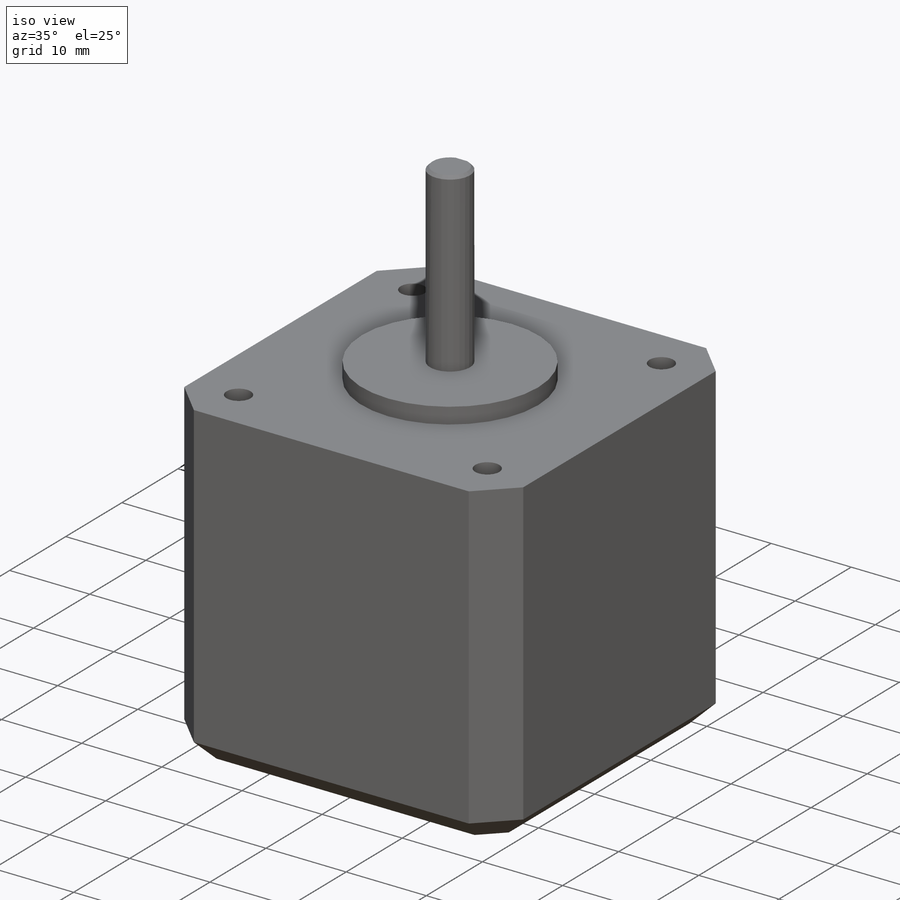
[diagram: iso view]
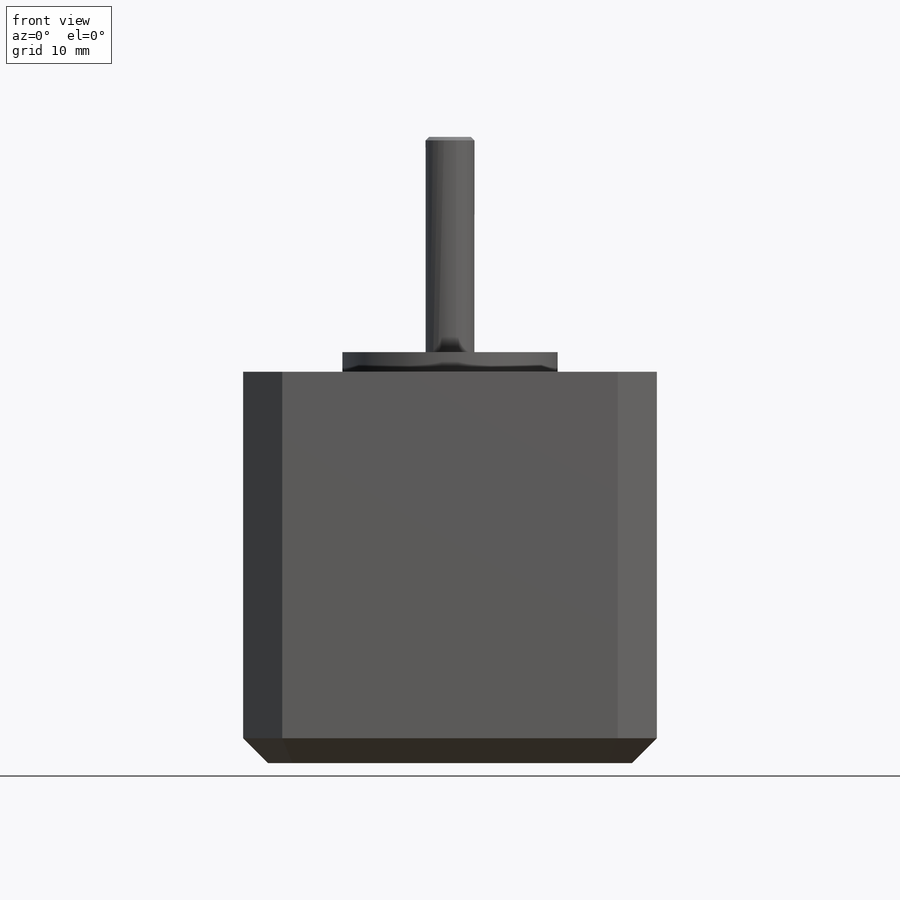
[diagram: front view]
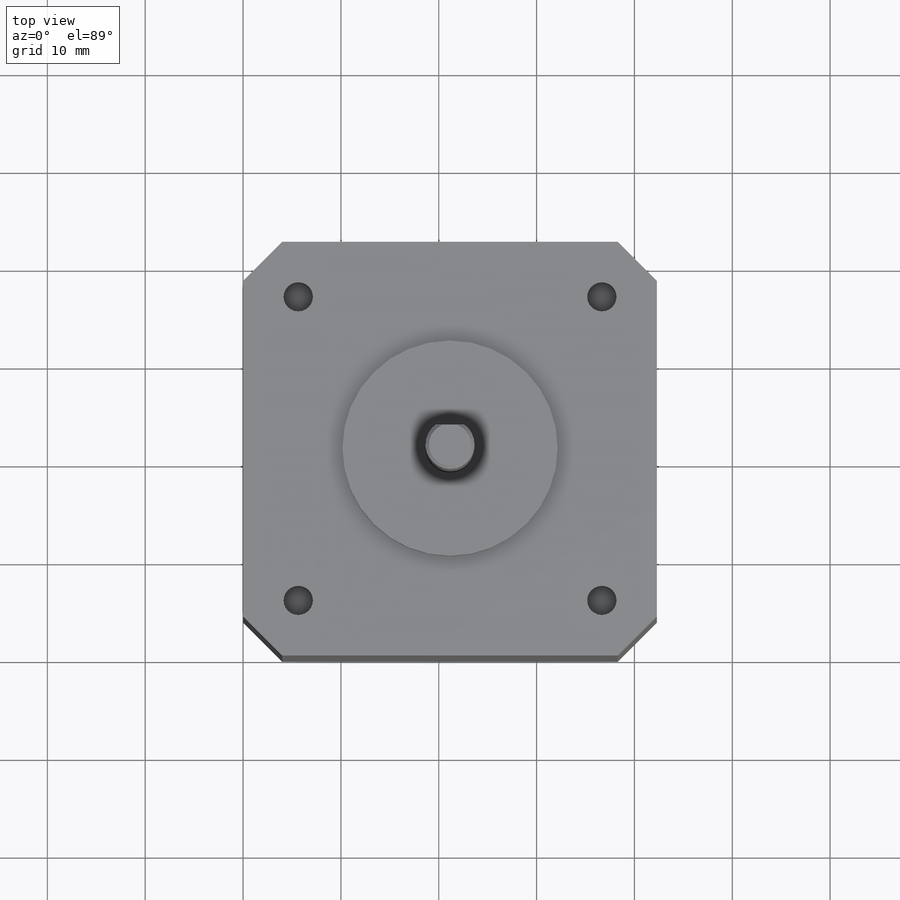
[diagram: top view]
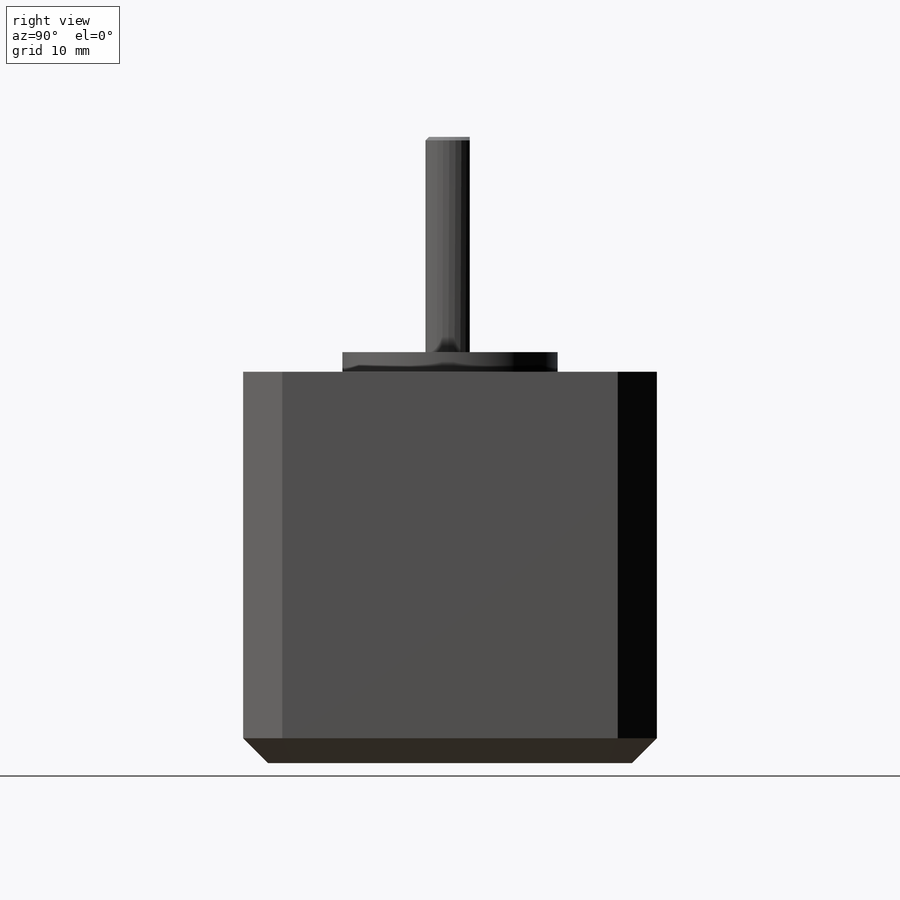
[diagram: right view]
SOLIDWORKS PART (.sldprt)
format: sldprt  version: not decoded by parser v0  size: 218,624 bytes
history: native  units: mm
features: sketch x5, cut_extrude x2, chamfer x2, material x1, extrude x1, plane x1, revolve x1 (+11 scaffold rows collapsed)
feature tree (24):
  scaffold x11  (default folders/planes/origin — collapsed)
  material  "AISI Type A2 Tool Steel"
  sketch  "Sketch1"  dims[c1.D5=3.0mm c1.D1=42.3mm c1.D2=42.3mm c2.D2=45.0deg c2.D3=42.3mm c3.D3=45.0deg c3.D4=42.3mm c4.D4=45.0deg c4.D5=~8.524726mm c5.D5=45.0deg c5.D1=42.3mm c5.D2=4.0mm c5.D3=4.0mm c5.D4=15.5mm c5.D6=15.5mm]
  extrude  "Boss-Extrude1"  Depth=40mm
  sketch  "Sketch2"  dims[D1=3.0mm D2=15.515mm D3=15.515mm]
  cut_extrude  "Cut-Extrude1"  Depth=5mm
  sketch  "Sketch5"
  plane  "Plane1"
  sketch  "Sketch6"  dims[D1=11.0mm D2=2.5mm D3=2.0mm D4=24.0mm]
  revolve  "Revolve1"  Angle=360deg
  chamfer  "Chamfer1"  Distance=0.35mm Angle=45deg
  sketch  "Sketch7"  dims[D1=4.5212mm]
  cut_extrude  "D shaft"  [1 undecoded]
  chamfer  "Chamfer2"  Distance=2.54mm Angle=45deg
decode coverage: 9 of 11 modeling features carry decoded parameters
note: ~ marks probable driven/reference dimensions
note: 1 parameter value undecoded
note: suppression state not decoded; provenance and decode notes live in map.json
